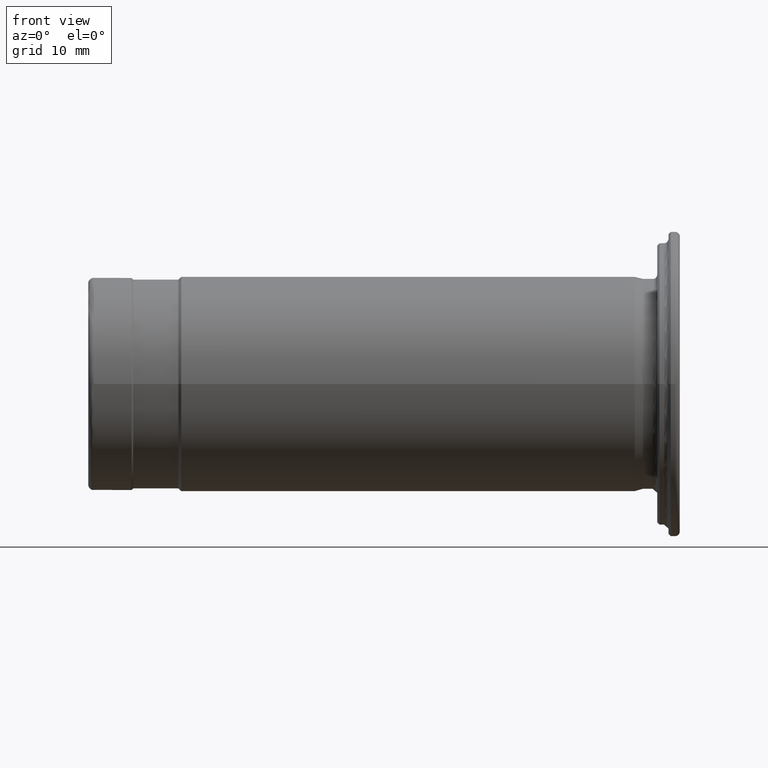
[diagram: clean part render]
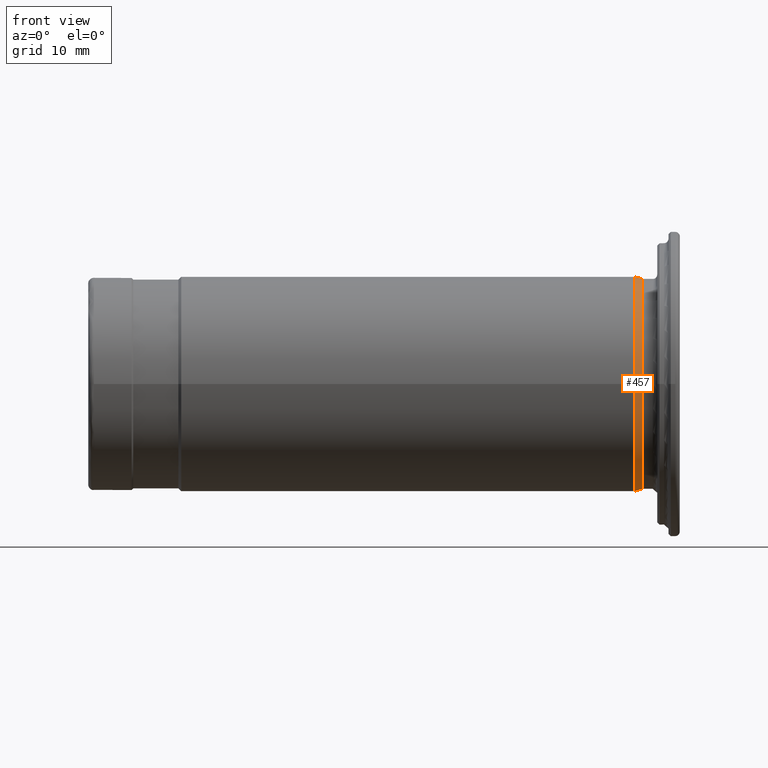
[diagram: same view with one face highlighted and labeled with its STEP entity id]
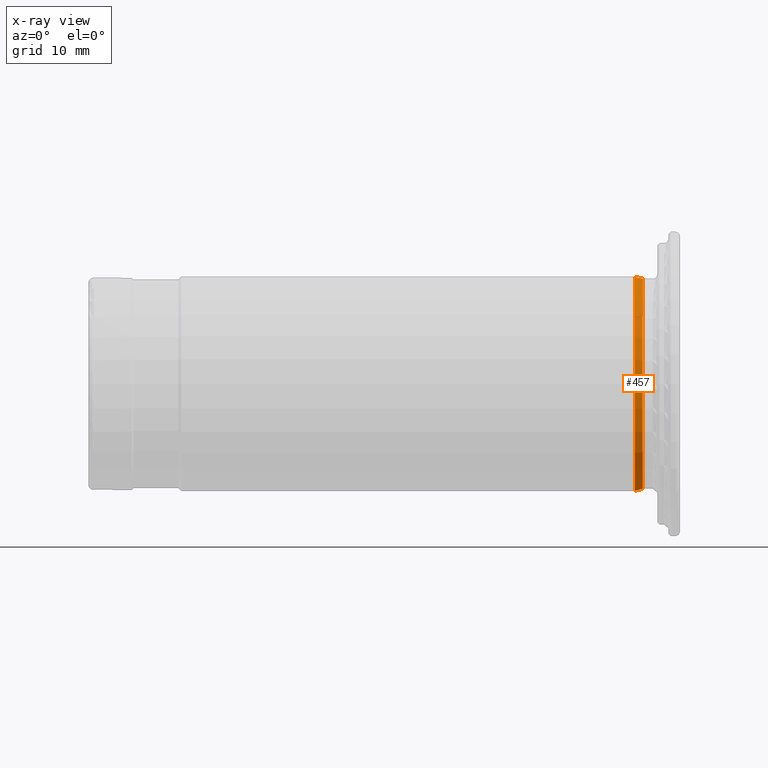
[diagram: x-ray of the same camera — body ghosted, the highlighted face saturated]
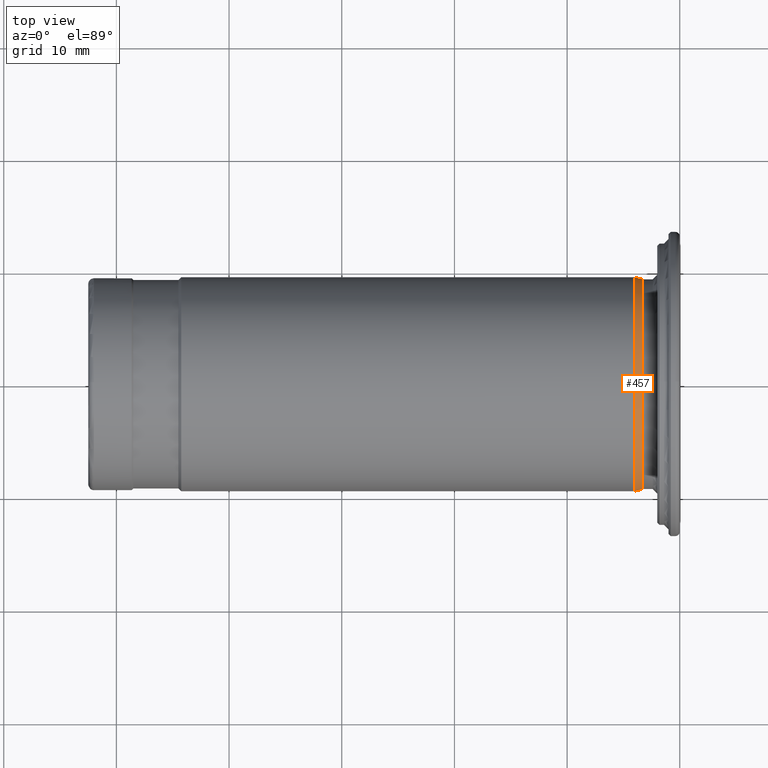
[diagram: same view with one face highlighted and labeled with its STEP entity id]
A machine part, front view. The second image highlights one B-rep face of the part: STEP entity #457.
The next image is the same camera in x-ray: the body ghosted, the highlighted face saturated — about 0% of this face is hidden behind the body in this view.
A second angle (top view) of the same face is appended — the face is thin or edge-on in the first view.
In plain terms, the highlighted conical surface has half-angle 15 deg.
Its self-contained STEP definition (entity closure, byte-faithful):
#24=CONICAL_SURFACE('',#518,9.43181483474213,0.261799387799977);
#35=LINE('',#783,#52);
#52=VECTOR('',#620,9.43181483474213);
#79=FACE_OUTER_BOUND('',#108,.T.);
#108=EDGE_LOOP('',(#311,#312,#313,#314,#315));
#143=CIRCLE('',#517,9.52500000000017);
#144=CIRCLE('',#519,9.33862966948438);
#145=CIRCLE('',#520,9.33862966948438);
#189=VERTEX_POINT('',#776);
#190=VERTEX_POINT('',#780);
#191=VERTEX_POINT('',#781);
#233=EDGE_CURVE('',#189,#189,#143,.T.);
#235=EDGE_CURVE('',#190,#191,#144,.T.);
#236=EDGE_CURVE('',#190,#189,#35,.T.);
#237=EDGE_CURVE('',#191,#190,#145,.T.);
#311=ORIENTED_EDGE('',*,*,#235,.F.);
#312=ORIENTED_EDGE('',*,*,#236,.T.);
#313=ORIENTED_EDGE('',*,*,#233,.T.);
#314=ORIENTED_EDGE('',*,*,#236,.F.);
#315=ORIENTED_EDGE('',*,*,#237,.F.);
#457=ADVANCED_FACE('',(#79),#24,.T.);
#517=AXIS2_PLACEMENT_3D('',#777,#613,#614);
#518=AXIS2_PLACEMENT_3D('',#779,#616,#617);
#519=AXIS2_PLACEMENT_3D('',#782,#618,#619);
#520=AXIS2_PLACEMENT_3D('',#784,#621,#622);
#613=DIRECTION('center_axis',(1.,0.,0.));
#614=DIRECTION('ref_axis',(0.,0.,-1.));
#616=DIRECTION('center_axis',(-1.,0.,0.));
#617=DIRECTION('ref_axis',(0.,1.,0.));
#618=DIRECTION('center_axis',(1.,0.,0.));
#619=DIRECTION('ref_axis',(0.,0.,-1.));
#620=DIRECTION('',(-0.965925826288854,-0.25881904510332,-3.16961915144156E-17));
#621=DIRECTION('center_axis',(1.,0.,0.));
#622=DIRECTION('ref_axis',(0.,0.,-1.));
#776=CARTESIAN_POINT('',(-3.99999999999986,-9.52500000000017,-1.16647607618787E-15));
#777=CARTESIAN_POINT('Origin',(-3.99999999999986,0.,0.));
#779=CARTESIAN_POINT('Origin',(-3.65222822874633,0.,0.));
#780=CARTESIAN_POINT('',(-3.30445645749279,-9.3386296694841,-1.14365229331562E-15));
#781=CARTESIAN_POINT('',(-3.30445645749272,-1.14365229331566E-15,9.33862966948438));
#782=CARTESIAN_POINT('Origin',(-3.30445645749272,0.,0.));
#783=CARTESIAN_POINT('',(-3.65222822874633,-9.43181483474213,-1.15506418475175E-15));
#784=CARTESIAN_POINT('Origin',(-3.30445645749272,0.,0.));